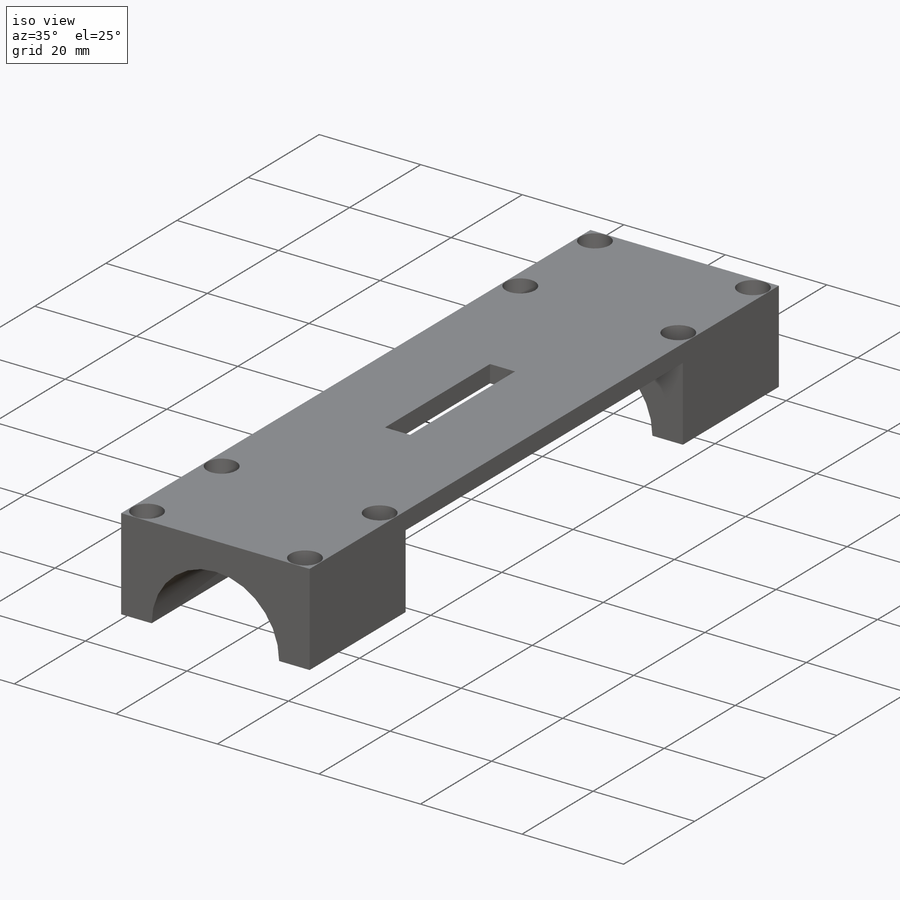
[diagram: iso view]
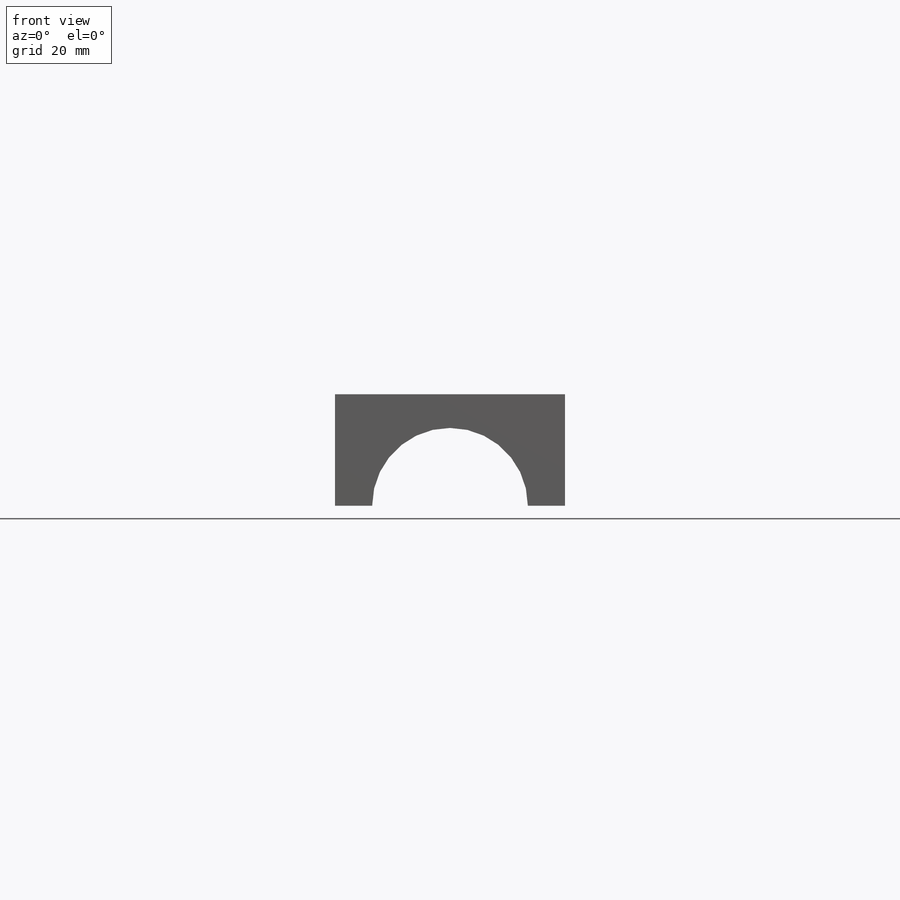
[diagram: front view]
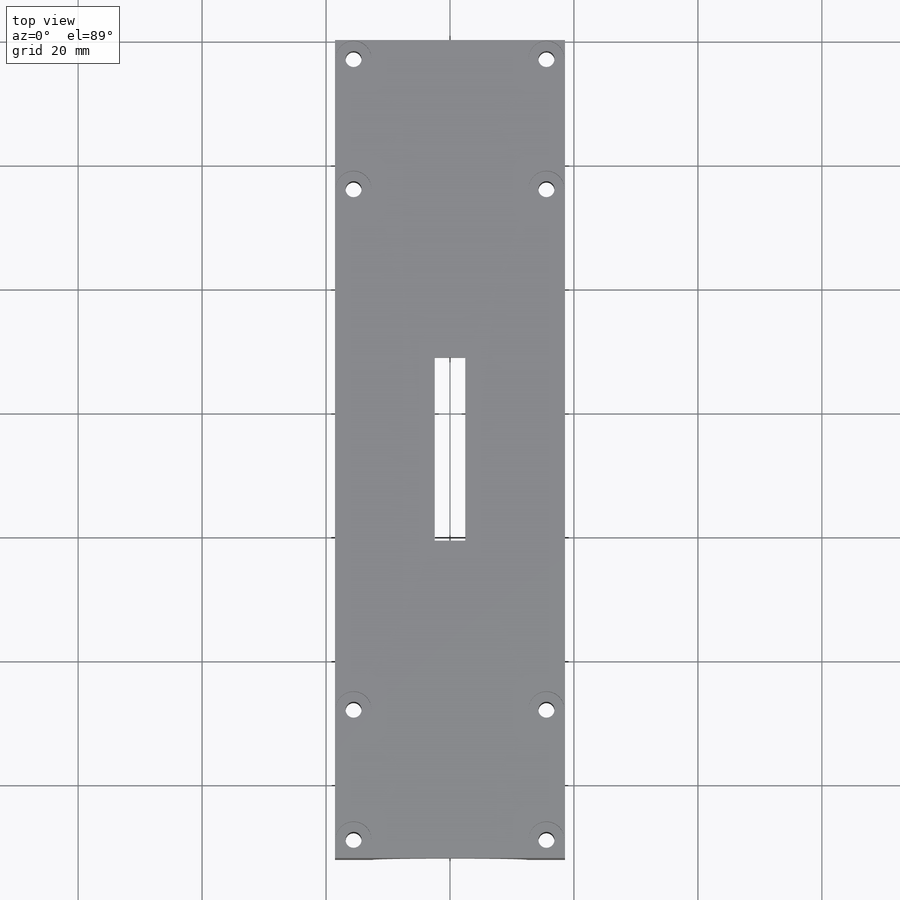
[diagram: top view]
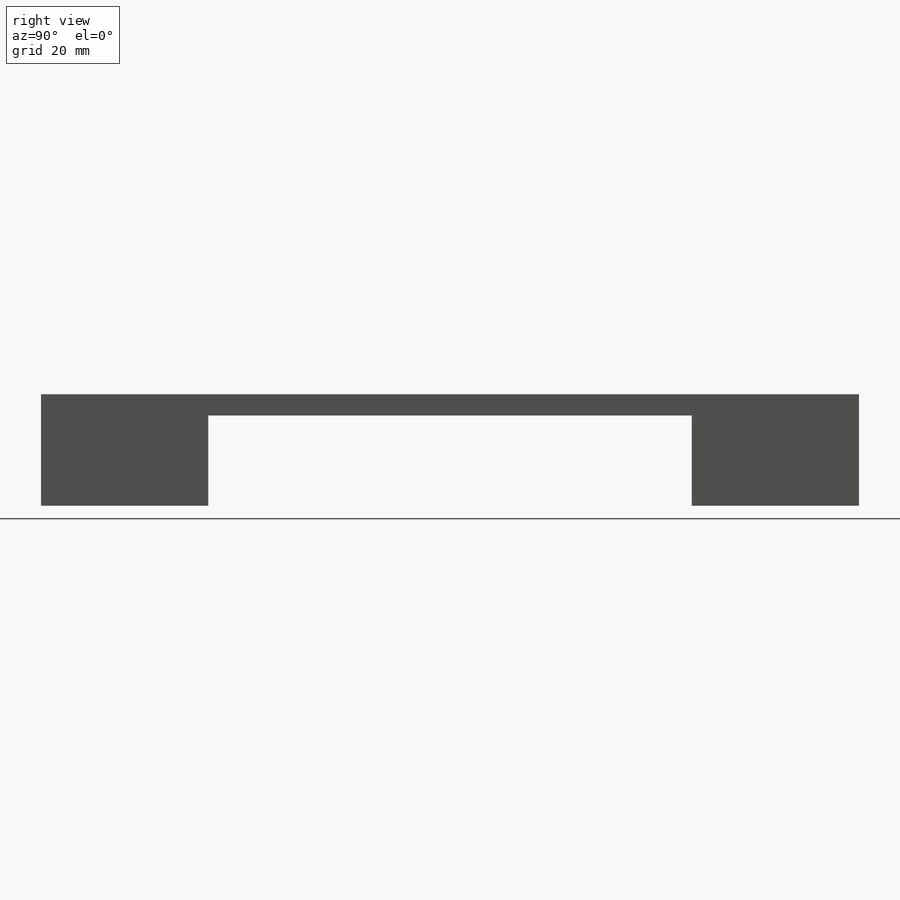
[diagram: right view]
SOLIDWORKS PART (.sldprt)
format: sldprt  version: not decoded by parser v0  size: 250,368 bytes
history: native  units: mm
features: sketch x5, cut_extrude x4, plane x3, material x1, extrude x1 (+10 scaffold rows collapsed)
feature tree (24):
  scaffold x10  (default folders/planes/origin — collapsed)
  material  "Matériau <non spécifié>"
  plane  "Plan de face"
  plane  "Plan de dessus"
  plane  "Plan de droite"
  sketch  "Esquisse1"  dims[c1.D1=~22.590134mm c1.D2=~12.560062mm c1.D3=~12.560062mm c2.D1=6.0mm c2.D2=18.0mm c2.D3=16.0mm]
  extrude  "Boss.-Extru.1"  Depth=132mm
  sketch  "Esquisse2"  dims[D1=27.0mm D2=3.43mm]
  cut_extrude  "Enlèv. mat.-Extru.1"  Depth=132mm
  sketch  "Esquisse3"
  cut_extrude  "Enlèv. mat.-Extru.2"  Depth=4mm
  sketch  "Esquisse4"  dims[D1=3.0mm D2=3.0mm D3=10.5mm]
  cut_extrude  "Enlèv. mat.-Extru.3"  Depth=18mm
  sketch  "Esquisse6"  dims[D4=3.0mm D1=3.0mm D2=3.0mm D3=10.5mm]
  cut_extrude  "Enlèv. mat.-Extru.5"  Depth=3mm
decode coverage: 9 of 10 modeling features carry decoded parameters
note: ~ marks probable driven/reference dimensions
note: suppression state not decoded; provenance and decode notes live in map.json
